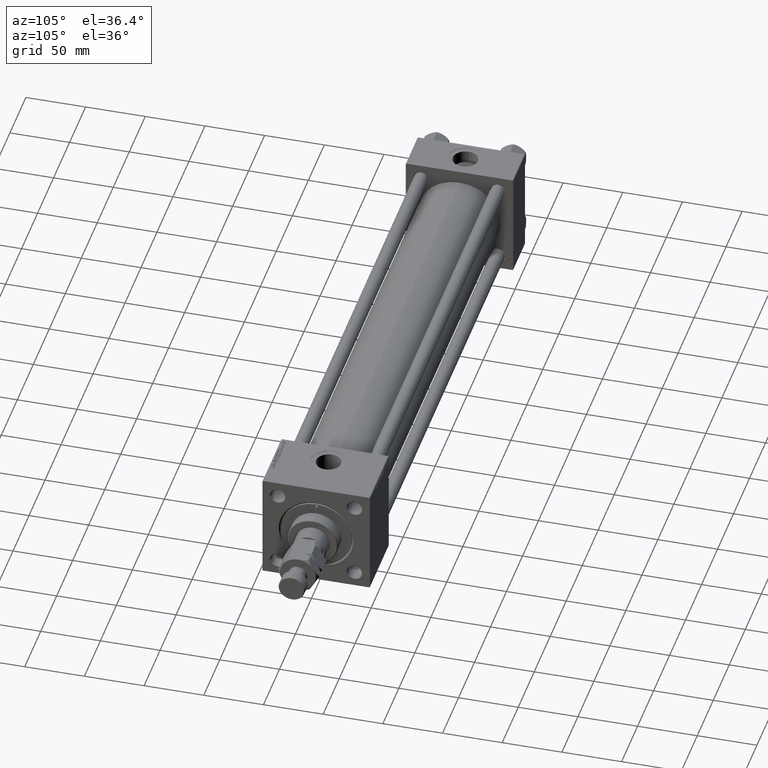
[diagram: clean part render]
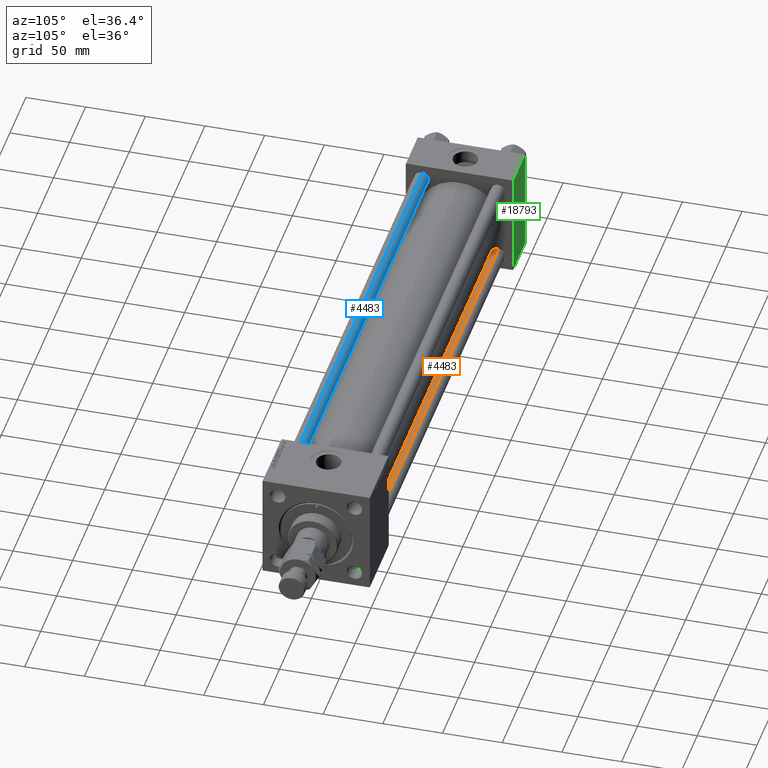
[diagram: same view with three faces highlighted in distinct colors, each labeled with its STEP entity id]
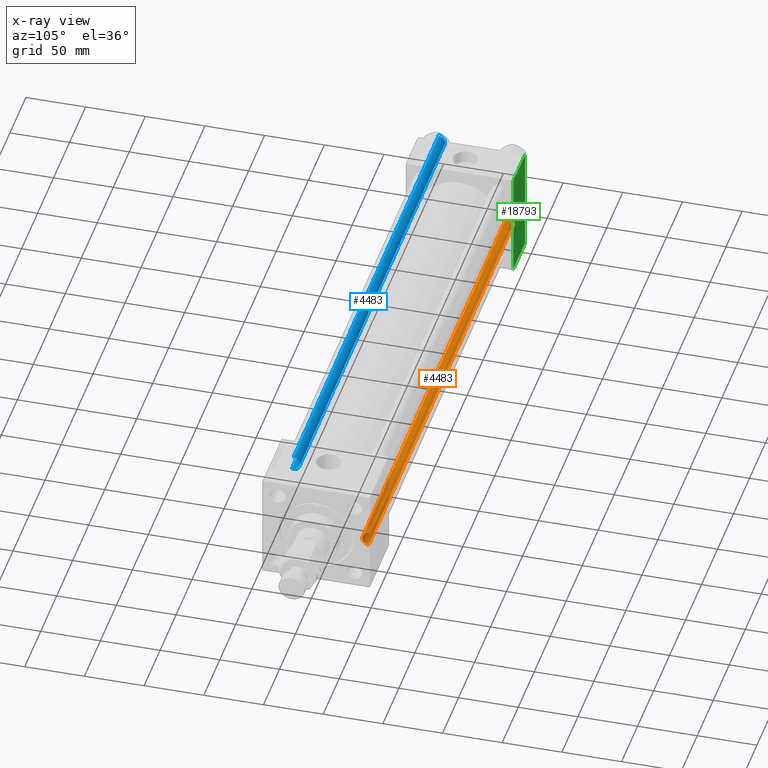
[diagram: x-ray of the same camera — body ghosted, the three highlighted faces saturated]
A machine part, auxiliary view with three faces highlighted in distinct colors.
The next image is the same camera in x-ray (body ghosted, the three faces saturated) — at least one of them is partly hidden behind the body in this view.
Their STEP definitions:

[orange] entity #4483 — the highlighted cylindrical surface (edge-blend (fillet) strip) has radius 6 mm, axis along (1, -0, 0).
#855 = DIRECTION ( 'NONE',  ( -0.000000000000000000, -0.000000000000000000, -1.000000000000000000 ) ) ;
#1596 = EDGE_CURVE ( 'NONE', #17520, #38791, #9269, .T. ) ;
#4018 = VECTOR ( 'NONE', #33617, 1000.000000000000000 ) ;
#4483 = ADVANCED_FACE ( 'NONE', ( #38409 ), #43161, .T. ) ;
#5153 = CARTESIAN_POINT ( 'NONE',  ( -6.000000000000000888, 0.000000000000000000, 0.5000000000002224887 ) ) ;
#6589 = DIRECTION ( 'NONE',  ( -1.000000000000000000, 0.000000000000000000, 0.000000000000000000 ) ) ;
#6974 = ORIENTED_EDGE ( 'NONE', *, *, #42080, .T. ) ;
#7774 = AXIS2_PLACEMENT_3D ( 'NONE', #8765, #21122, #25850 ) ;
#8018 = CARTESIAN_POINT ( 'NONE',  ( 0.000000000000000000, 0.000000000000000000, 0.5000000000002224887 ) ) ;
#8765 = CARTESIAN_POINT ( 'NONE',  ( 0.000000000000000000, 0.000000000000000000, 454.5000000000002842 ) ) ;
#8792 = DIRECTION ( 'NONE',  ( -0.000000000000000000, -0.000000000000000000, 1.000000000000000000 ) ) ;
#9269 = LINE ( 'NONE', #40849, #10882 ) ;
#9433 = CARTESIAN_POINT ( 'NONE',  ( 6.000000000000000888, 7.347880794884119736E-16, 455.0000000000000000 ) ) ;
#9747 = EDGE_LOOP ( 'NONE', ( #26358, #6974, #24881, #22634 ) ) ;
#10026 = CARTESIAN_POINT ( 'NONE',  ( 0.000000000000000000, 0.000000000000000000, 455.0000000000000000 ) ) ;
#10540 = DIRECTION ( 'NONE',  ( -0.000000000000000000, -0.000000000000000000, -1.000000000000000000 ) ) ;
#10882 = VECTOR ( 'NONE', #855, 1000.000000000000000 ) ;
#14954 = CARTESIAN_POINT ( 'NONE',  ( -6.000000000000000888, 0.000000000000000000, 454.5000000000002842 ) ) ;
#17520 = VERTEX_POINT ( 'NONE', #14954 ) ;
#17578 = CIRCLE ( 'NONE', #49518, 6.000000000000000888 ) ;
#20360 = CIRCLE ( 'NONE', #7774, 6.000000000000000888 ) ;
#20980 = CARTESIAN_POINT ( 'NONE',  ( 6.000000000000000888, 7.347880794884119736E-16, 454.5000000000002842 ) ) ;
#21122 = DIRECTION ( 'NONE',  ( 0.000000000000000000, 0.000000000000000000, -1.000000000000000000 ) ) ;
#22634 = ORIENTED_EDGE ( 'NONE', *, *, #35266, .T. ) ;
#24881 = ORIENTED_EDGE ( 'NONE', *, *, #1596, .T. ) ;
#25850 = DIRECTION ( 'NONE',  ( 1.000000000000000000, 0.000000000000000000, 0.000000000000000000 ) ) ;
#26358 = ORIENTED_EDGE ( 'NONE', *, *, #31437, .F. ) ;
#27382 = VERTEX_POINT ( 'NONE', #43830 ) ;
#31437 = EDGE_CURVE ( 'NONE', #48487, #27382, #48664, .T. ) ;
#33617 = DIRECTION ( 'NONE',  ( -0.000000000000000000, -0.000000000000000000, -1.000000000000000000 ) ) ;
#35266 = EDGE_CURVE ( 'NONE', #38791, #27382, #17578, .T. ) ;
#38409 = FACE_OUTER_BOUND ( 'NONE', #9747, .T. ) ;
#38791 = VERTEX_POINT ( 'NONE', #5153 ) ;
#40849 = CARTESIAN_POINT ( 'NONE',  ( -6.000000000000000888, 0.000000000000000000, 455.0000000000000000 ) ) ;
#42080 = EDGE_CURVE ( 'NONE', #48487, #17520, #20360, .T. ) ;
#43161 = CYLINDRICAL_SURFACE ( 'NONE', #50489, 6.000000000000000888 ) ;
#43830 = CARTESIAN_POINT ( 'NONE',  ( 6.000000000000000888, 7.347880794884119736E-16, 0.5000000000002224887 ) ) ;
#44079 = DIRECTION ( 'NONE',  ( 1.000000000000000000, 0.000000000000000000, 0.000000000000000000 ) ) ;
#48487 = VERTEX_POINT ( 'NONE', #20980 ) ;
#48664 = LINE ( 'NONE', #9433, #4018 ) ;
#49518 = AXIS2_PLACEMENT_3D ( 'NONE', #8018, #8792, #44079 ) ;
#50489 = AXIS2_PLACEMENT_3D ( 'NONE', #10026, #10540, #6589 ) ;

[blue] entity #4483 — the highlighted cylindrical surface (edge-blend (fillet) strip) has radius 6 mm, axis along (1, 0, -0).
#855 = DIRECTION ( 'NONE',  ( -0.000000000000000000, -0.000000000000000000, -1.000000000000000000 ) ) ;
#1596 = EDGE_CURVE ( 'NONE', #17520, #38791, #9269, .T. ) ;
#4018 = VECTOR ( 'NONE', #33617, 1000.000000000000000 ) ;
#4483 = ADVANCED_FACE ( 'NONE', ( #38409 ), #43161, .T. ) ;
#5153 = CARTESIAN_POINT ( 'NONE',  ( -6.000000000000000888, 0.000000000000000000, 0.5000000000002224887 ) ) ;
#6589 = DIRECTION ( 'NONE',  ( -1.000000000000000000, 0.000000000000000000, 0.000000000000000000 ) ) ;
#6974 = ORIENTED_EDGE ( 'NONE', *, *, #42080, .T. ) ;
#7774 = AXIS2_PLACEMENT_3D ( 'NONE', #8765, #21122, #25850 ) ;
#8018 = CARTESIAN_POINT ( 'NONE',  ( 0.000000000000000000, 0.000000000000000000, 0.5000000000002224887 ) ) ;
#8765 = CARTESIAN_POINT ( 'NONE',  ( 0.000000000000000000, 0.000000000000000000, 454.5000000000002842 ) ) ;
#8792 = DIRECTION ( 'NONE',  ( -0.000000000000000000, -0.000000000000000000, 1.000000000000000000 ) ) ;
#9269 = LINE ( 'NONE', #40849, #10882 ) ;
#9433 = CARTESIAN_POINT ( 'NONE',  ( 6.000000000000000888, 7.347880794884119736E-16, 455.0000000000000000 ) ) ;
#9747 = EDGE_LOOP ( 'NONE', ( #26358, #6974, #24881, #22634 ) ) ;
#10026 = CARTESIAN_POINT ( 'NONE',  ( 0.000000000000000000, 0.000000000000000000, 455.0000000000000000 ) ) ;
#10540 = DIRECTION ( 'NONE',  ( -0.000000000000000000, -0.000000000000000000, -1.000000000000000000 ) ) ;
#10882 = VECTOR ( 'NONE', #855, 1000.000000000000000 ) ;
#14954 = CARTESIAN_POINT ( 'NONE',  ( -6.000000000000000888, 0.000000000000000000, 454.5000000000002842 ) ) ;
#17520 = VERTEX_POINT ( 'NONE', #14954 ) ;
#17578 = CIRCLE ( 'NONE', #49518, 6.000000000000000888 ) ;
#20360 = CIRCLE ( 'NONE', #7774, 6.000000000000000888 ) ;
#20980 = CARTESIAN_POINT ( 'NONE',  ( 6.000000000000000888, 7.347880794884119736E-16, 454.5000000000002842 ) ) ;
#21122 = DIRECTION ( 'NONE',  ( 0.000000000000000000, 0.000000000000000000, -1.000000000000000000 ) ) ;
#22634 = ORIENTED_EDGE ( 'NONE', *, *, #35266, .T. ) ;
#24881 = ORIENTED_EDGE ( 'NONE', *, *, #1596, .T. ) ;
#25850 = DIRECTION ( 'NONE',  ( 1.000000000000000000, 0.000000000000000000, 0.000000000000000000 ) ) ;
#26358 = ORIENTED_EDGE ( 'NONE', *, *, #31437, .F. ) ;
#27382 = VERTEX_POINT ( 'NONE', #43830 ) ;
#31437 = EDGE_CURVE ( 'NONE', #48487, #27382, #48664, .T. ) ;
#33617 = DIRECTION ( 'NONE',  ( -0.000000000000000000, -0.000000000000000000, -1.000000000000000000 ) ) ;
#35266 = EDGE_CURVE ( 'NONE', #38791, #27382, #17578, .T. ) ;
#38409 = FACE_OUTER_BOUND ( 'NONE', #9747, .T. ) ;
#38791 = VERTEX_POINT ( 'NONE', #5153 ) ;
#40849 = CARTESIAN_POINT ( 'NONE',  ( -6.000000000000000888, 0.000000000000000000, 455.0000000000000000 ) ) ;
#42080 = EDGE_CURVE ( 'NONE', #48487, #17520, #20360, .T. ) ;
#43161 = CYLINDRICAL_SURFACE ( 'NONE', #50489, 6.000000000000000888 ) ;
#43830 = CARTESIAN_POINT ( 'NONE',  ( 6.000000000000000888, 7.347880794884119736E-16, 0.5000000000002224887 ) ) ;
#44079 = DIRECTION ( 'NONE',  ( 1.000000000000000000, 0.000000000000000000, 0.000000000000000000 ) ) ;
#48487 = VERTEX_POINT ( 'NONE', #20980 ) ;
#48664 = LINE ( 'NONE', #9433, #4018 ) ;
#49518 = AXIS2_PLACEMENT_3D ( 'NONE', #8018, #8792, #44079 ) ;
#50489 = AXIS2_PLACEMENT_3D ( 'NONE', #10026, #10540, #6589 ) ;

[green] entity #18793 — the highlighted planar face has unit normal (0, 1, 0).
#1938 = VECTOR ( 'NONE', #34548, 1000.000000000000000 ) ;
#2489 = CARTESIAN_POINT ( 'NONE',  ( 37.00000000000000000, 44.99999999999998579, -44.49999999999995737 ) ) ;
#5513 = VERTEX_POINT ( 'NONE', #9972 ) ;
#7665 = PLANE ( 'NONE',  #35727 ) ;
#8785 = DIRECTION ( 'NONE',  ( 0.000000000000000000, 0.000000000000000000, -1.000000000000000000 ) ) ;
#9561 = CARTESIAN_POINT ( 'NONE',  ( 37.00000000000000000, 44.99999999999998579, 45.00000000000001421 ) ) ;
#9972 = CARTESIAN_POINT ( 'NONE',  ( 0.000000000000000000, 44.99999999999998579, -44.49999999999995737 ) ) ;
#10204 = LINE ( 'NONE', #46520, #18062 ) ;
#11888 = EDGE_CURVE ( 'NONE', #36709, #36317, #51813, .T. ) ;
#18062 = VECTOR ( 'NONE', #43341, 1000.000000000000000 ) ;
#18793 = ADVANCED_FACE ( 'NONE', ( #47670 ), #7665, .T. ) ;
#19061 = VECTOR ( 'NONE', #8785, 1000.000000000000000 ) ;
#23443 = EDGE_CURVE ( 'NONE', #36317, #42989, #44844, .T. ) ;
#24411 = EDGE_LOOP ( 'NONE', ( #46203, #26025, #44092, #35195 ) ) ;
#26025 = ORIENTED_EDGE ( 'NONE', *, *, #52104, .T. ) ;
#31598 = DIRECTION ( 'NONE',  ( 0.000000000000000000, -0.000000000000000000, 1.000000000000000000 ) ) ;
#31653 = CARTESIAN_POINT ( 'NONE',  ( 0.000000000000000000, 44.99999999999998579, 44.50000000000001421 ) ) ;
#33810 = VECTOR ( 'NONE', #35739, 1000.000000000000000 ) ;
#34371 = CARTESIAN_POINT ( 'NONE',  ( 37.00000000000000000, 44.99999999999998579, 44.50000000000001421 ) ) ;
#34548 = DIRECTION ( 'NONE',  ( 0.000000000000000000, 0.000000000000000000, -1.000000000000000000 ) ) ;
#35195 = ORIENTED_EDGE ( 'NONE', *, *, #11888, .T. ) ;
#35727 = AXIS2_PLACEMENT_3D ( 'NONE', #36577, #51881, #31598 ) ;
#35739 = DIRECTION ( 'NONE',  ( 1.000000000000000000, 0.000000000000000000, 0.000000000000000000 ) ) ;
#36317 = VERTEX_POINT ( 'NONE', #34371 ) ;
#36577 = CARTESIAN_POINT ( 'NONE',  ( 37.00000000000000000, 44.99999999999998579, 45.00000000000001421 ) ) ;
#36709 = VERTEX_POINT ( 'NONE', #31653 ) ;
#38234 = CARTESIAN_POINT ( 'NONE',  ( 0.000000000000000000, 44.99999999999998579, 45.00000000000001421 ) ) ;
#42201 = LINE ( 'NONE', #38234, #1938 ) ;
#42989 = VERTEX_POINT ( 'NONE', #2489 ) ;
#43341 = DIRECTION ( 'NONE',  ( -1.000000000000000000, 0.000000000000000000, 0.000000000000000000 ) ) ;
#44092 = ORIENTED_EDGE ( 'NONE', *, *, #47602, .F. ) ;
#44844 = LINE ( 'NONE', #9561, #19061 ) ;
#46203 = ORIENTED_EDGE ( 'NONE', *, *, #23443, .T. ) ;
#46520 = CARTESIAN_POINT ( 'NONE',  ( 37.00000000000000000, 44.99999999999998579, -44.49999999999998579 ) ) ;
#47602 = EDGE_CURVE ( 'NONE', #36709, #5513, #42201, .T. ) ;
#47670 = FACE_OUTER_BOUND ( 'NONE', #24411, .T. ) ;
#51556 = CARTESIAN_POINT ( 'NONE',  ( 37.00000000000000000, 44.99999999999998579, 44.50000000000001421 ) ) ;
#51813 = LINE ( 'NONE', #51556, #33810 ) ;
#51881 = DIRECTION ( 'NONE',  ( -0.000000000000000000, 1.000000000000000000, 0.000000000000000000 ) ) ;
#52104 = EDGE_CURVE ( 'NONE', #42989, #5513, #10204, .T. ) ;